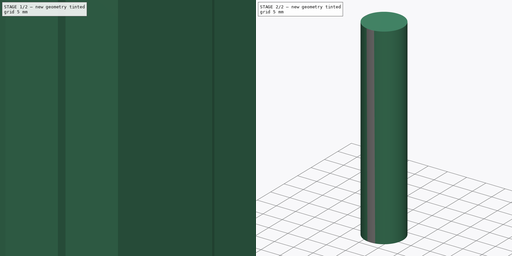
[diagram: build sequence overview — one tinted view per stage of 2, left to right]
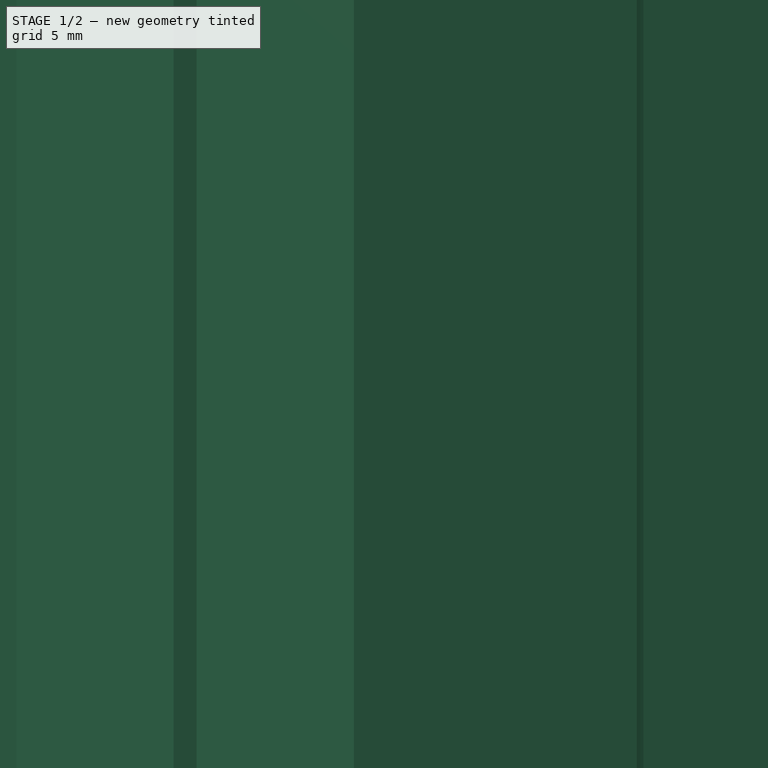
[diagram: stage 1 of 2 — iso view after this stage's code; geometry added in this stage tinted green]
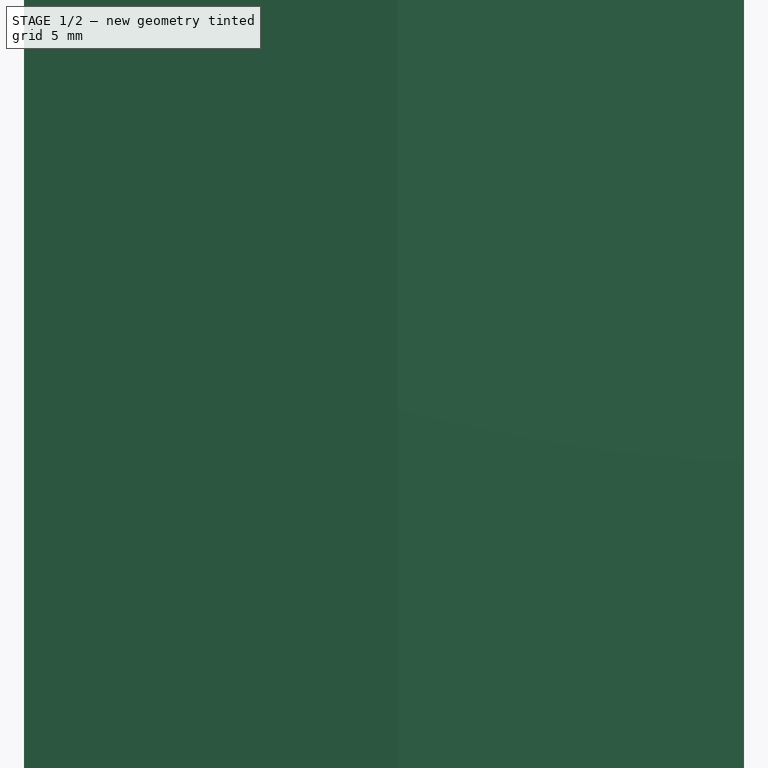
[diagram: stage 1 of 2 — front view after this stage's code; geometry added in this stage tinted green]
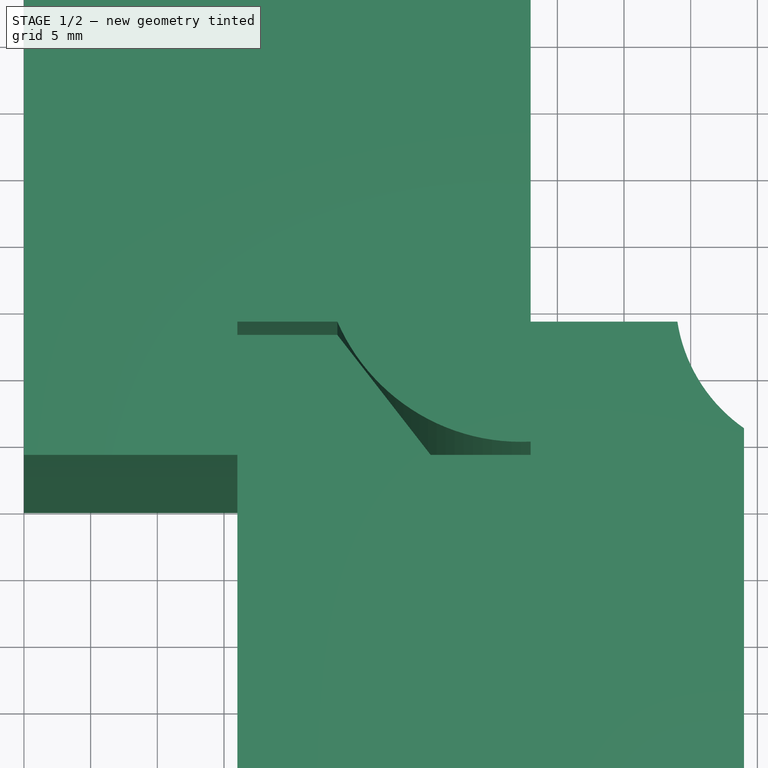
[diagram: stage 1 of 2 — top view after this stage's code; geometry added in this stage tinted green]
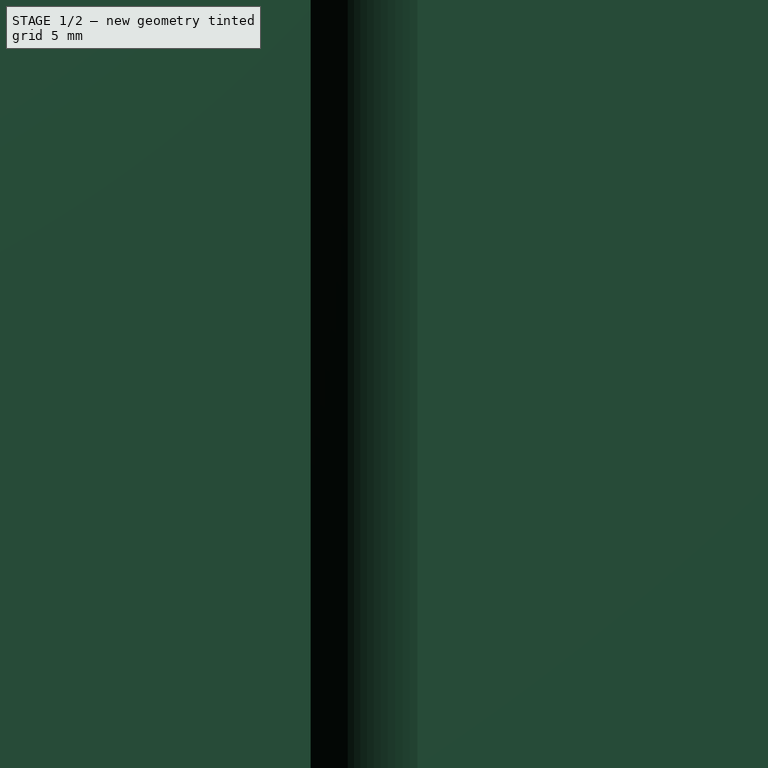
[diagram: stage 1 of 2 — right view after this stage's code; geometry added in this stage tinted green]
FCSTD DOCUMENT  (FreeCAD 0.19R24291 (Git))
Label: fenster_alt
License: All rights reserved
LicenseURL: http://en.wikipedia.org/wiki/All_rights_reserved
objects: TechDraw::DrawViewDimension×17, Sketcher::SketchObject×6, Part::Extrusion×3, App::DocumentObjectGroup×2, TechDraw::DrawSVGTemplate×1, TechDraw::DrawViewPart×1, TechDraw::DrawPage×1
note: 9 computed .brp shape members not serialized (recipe doc carries the construction recipe); baked Part::Feature solids carry a one-line shape summary decoded from their .brp

FEATURE [Sketcher::SketchObject] Sketch  label="blendrahmen_seite"
  FullyConstrained = true
  sketch-geometry (11):
    g0: LineSegment StartX=0 StartY=0 StartZ=0 EndX=0 EndY=57 EndZ=0
    g1: LineSegment StartX=0 StartY=57 StartZ=0 EndX=38 EndY=57 EndZ=0
    g2: LineSegment StartX=38 StartY=57 StartZ=0 EndX=38 EndY=1 EndZ=0
    g3: ArcOfCircle CenterX=37.8977 CenterY=25.9998 CenterZ=0 NormalX=0 NormalY=0 NormalZ=1 AngleXU=0 Radius=25 StartAngle=4.15658 EndAngle=4.71648
    g4: ArcOfCircle CenterX=16.7923 CenterY=-7.97906 CenterZ=0 NormalX=0 NormalY=0 NormalZ=1 AngleXU=0 Radius=15 StartAngle=1.01498 EndAngle=1.62364
    g5: LineSegment StartX=0 StartY=0 StartZ=0 EndX=16 EndY=0 EndZ=0
    g6: LineSegment StartX=16 StartY=0 StartZ=0 EndX=16 EndY=7 EndZ=0
    g7: GeomPoint X=16 Y=6.5 Z=0
    g8: LineSegment StartX=38 StartY=1 StartZ=0 EndX=38 EndY=0.5 EndZ=0
    g9: LineSegment StartX=16 StartY=6.5 StartZ=0 EndX=38 EndY=0.5 EndZ=0
    g10: GeomPoint X=27 Y=3.5 Z=0
  constraints (29):
    c: Coincident(g-1,g0)
    c: PointOnObject(g0,g-2)
    c: Coincident(g0,g1)
    c: Horizontal(g1)
    c: Coincident(g1,g2)
    c: Vertical(g2)
    c: Coincident(g3,g2)
    c: Coincident(g0,g5)
    c: PointOnObject(g5,g-1)
    c: Coincident(g5,g6)
    c: Coincident(g6,g4)
    c: Vertical(g6)
    c: DistanceY(g0,g0) = 57
    c: DistanceX(g1,g1) = 38
    c: DistanceY(g2,g2) = 56
    c: Radius(g4) = 15
    c: Radius(g3) = 25
    c: DistanceX(g5,g5) = 16
    c: DistanceY(g6,g6) = 7
    c: Tangent(g3,g4) = 1.5708
    c: PointOnObject(g7,g6)
    c: DistanceY(g7,g4) = 0.5
    c: Coincident(g8,g2)
    c: Vertical(g8)
    c: DistanceY(g8,g8) = 0.5
    c: Coincident(g9,g7)
    c: Coincident(g9,g8)
    c: Symmetric(g8,g7,g10)
    c: PointOnObject(g10,g3)
FEATURE [Sketcher::SketchObject] Sketch001  label="fluegelrahmen_seite"
  ExternalGeometry = -> [Sketch]
  FullyConstrained = true
  MapMode = 2
  Support = -> [Sketch]
  sketch-geometry (16):
    g0: LineSegment StartX=16 StartY=-38 StartZ=0 EndX=28 EndY=-38 EndZ=0
    g1: LineSegment StartX=28 StartY=-38 StartZ=0 EndX=28 EndY=-45 EndZ=0
    g2: LineSegment StartX=28 StartY=-45 StartZ=0 EndX=41 EndY=-43 EndZ=0
    g3: LineSegment StartX=41 StartY=-43 StartZ=0 EndX=41 EndY=-40 EndZ=0
    g4: LineSegment StartX=41 StartY=-40 StartZ=0 EndX=54 EndY=-38 EndZ=0
    g5: LineSegment StartX=54 StartY=-38 StartZ=0 EndX=54 EndY=-1 EndZ=0
    g6: ArcOfCircle CenterX=60.8568 CenterY=8.84803 CenterZ=0 NormalX=0 NormalY=0 NormalZ=1 AngleXU=0 Radius=12 StartAngle=3.29621 EndAngle=4.10417
    g7: LineSegment StartX=49 StartY=7 StartZ=0 EndX=38 EndY=7 EndZ=0
    g8: LineSegment StartX=38 StartY=7 StartZ=0 EndX=38 EndY=2.49e-14 EndZ=0
    g9: ArcOfCircle CenterX=37.2077 CenterY=14.9791 CenterZ=0 NormalX=0 NormalY=0 NormalZ=1 AngleXU=0 Radius=15 StartAngle=4.15658 EndAngle=4.76523
    g10: ArcOfCircle CenterX=16.1023 CenterY=-18.9998 CenterZ=0 NormalX=0 NormalY=0 NormalZ=1 AngleXU=0 Radius=25 StartAngle=1.01498 EndAngle=1.57489
    g11: LineSegment StartX=16 StartY=6 StartZ=0 EndX=16 EndY=-38 EndZ=0
    g12: LineSegment StartX=16 StartY=0 StartZ=0 EndX=38 EndY=2.49e-14 EndZ=0
    g13: LineSegment StartX=16 StartY=7 StartZ=0 EndX=16 EndY=6 EndZ=0
    g14: LineSegment StartX=38 StartY=0.5 StartZ=0 EndX=16 EndY=6.5 EndZ=0
    g15: GeomPoint X=27 Y=3.5 Z=0
  constraints (45):
    c: Horizontal(g0)
    c: Coincident(g0,g1)
    c: Vertical(g1)
    c: Coincident(g1,g2)
    c: Coincident(g2,g3)
    c: Vertical(g3)
    c: Coincident(g3,g4)
    c: Coincident(g4,g5)
    c: Vertical(g5)
    c: Coincident(g6,g5)
    c: Coincident(g6,g7)
    c: Coincident(g7,g8)
    c: Vertical(g8)
    c: Horizontal(g7)
    c: DistanceX(g0,g0) = 12
    c: DistanceY(g1,g2) = 2
    c: DistanceY(g2,g3) = 3
    c: DistanceY(g3,g4) = 2
    c: DistanceX(g0,g3) = 13
    c: DistanceX(g3,g4) = 13
    c: DistanceY(g4,g6) = 45
    c: DistanceY(g1,g1) = 7
    c: DistanceY(g0,g10) = 44
    c: Radius(g6) = 12
    c: DistanceY(g5,g6) = 8
    c: DistanceX(g6,g5) = 5
    c: Coincident(g11,g0)
    c: Vertical(g11)
    c: Radius(g9) = 15
    c: Radius(g10) = 25
    c: Coincident(g11,g10)
    c: PointOnObject(g10,g-4)
    c: DistanceY(g10,g-4) = 1
    c: Coincident(g9,g8)
    c: PointOnObject(g7,g-3)
    c: PointOnObject(g8,g-1)
    c: Coincident(g12,g-4)
    c: Coincident(g12,g8)
    c: Tangent(g10,g9) = 1.5708
    c: Coincident(g13,g-4)
    c: Coincident(g13,g10)
    c: Symmetric(g10,g13,g14)
    c: Symmetric(g8,g-3,g14)
    c: Symmetric(g14,g14,g15)
    c: PointOnObject(g15,g10)
FEATURE [TechDraw::DrawSVGTemplate] Template
  EditableTexts = AUTHOR_NAME=Malte Arzt; DATE=23.07.2022; DN=DN; REVISION=REV A; RIGHTS=(R) DO NOT DUPLICATE THIS DRAWING TO THIRD PARTIES WITHOUT OWNER'S PERMISSION !; SCALE=mm 1:1; SHEET=1 of 1; SIZE=A4; TITLELINE-1=Fenster Alt; TOLERANCE=+/- ?
  Height = 297
  Orientation = 0
  Width = 210
FEATURE [TechDraw::DrawViewPart] View
  CoarseView = false
  Direction = (0,0,1)
  Focus = 100
  HardHidden = false
  IsoCount = 0
  IsoHidden = false
  IsoVisible = false
  LockPosition = false
  Perspective = false
  Rotation = 0
  ScaleType = 0
  SeamHidden = false
  SeamVisible = true
  SmoothHidden = false
  SmoothVisible = true
  Source = -> [Sketch,Sketch001]
  X = 58.504
  XDirection = (1,0,0)
  Y = 223.263
FEATURE [TechDraw::DrawViewDimension] Dimension
  Arbitrary = false
  ArbitraryTolerances = false
  EqualTolerance = true
  FormatSpec = %.2f
  FormatSpecOverTolerance = %+.2f
  FormatSpecUnderTolerance = %+.2f
  Inverted = false
  LockPosition = false
  MeasureType = 1
  OverTolerance = 0
  References2D = -> [View]
  Rotation = 0
  ScaleType = 0
  TheoreticalExact = false
  Type = 1
  UnderTolerance = 0
  X = -9.55769
  Y = 59.8462
FEATURE [TechDraw::DrawViewDimension] Dimension001
  Arbitrary = false
  ArbitraryTolerances = false
  EqualTolerance = true
  FormatSpec = %.2f
  FormatSpecOverTolerance = %+.2f
  FormatSpecUnderTolerance = %+.2f
  Inverted = false
  LockPosition = false
  MeasureType = 1
  OverTolerance = 0
  References2D = -> [View]
  Rotation = 0
  ScaleType = 0
  TheoreticalExact = false
  Type = 2
  UnderTolerance = 0
  X = -34.1744
  Y = 27.6381
FEATURE [TechDraw::DrawViewDimension] Dimension002
  Arbitrary = false
  ArbitraryTolerances = false
  EqualTolerance = true
  FormatSpec = R%.2f
  FormatSpecOverTolerance = %+.2f
  FormatSpecUnderTolerance = %+.2f
  Inverted = false
  LockPosition = false
  MeasureType = 1
  OverTolerance = 0
  References2D = -> [View]
  Rotation = 0
  ScaleType = 0
  TheoreticalExact = false
  Type = 4
  UnderTolerance = 0
  X = -11.4576
  Y = -10.7196
FEATURE [TechDraw::DrawViewDimension] Dimension003
  Arbitrary = false
  ArbitraryTolerances = false
  EqualTolerance = true
  FormatSpec = R%.2f
  FormatSpecOverTolerance = %+.2f
  FormatSpecUnderTolerance = %+.2f
  Inverted = false
  LockPosition = false
  MeasureType = 1
  OverTolerance = 0
  References2D = -> [View]
  Rotation = 0
  ScaleType = 0
  TheoreticalExact = false
  Type = 4
  UnderTolerance = 0
  X = 4.714
  Y = 11.7529
FEATURE [TechDraw::DrawViewDimension] Dimension004
  Arbitrary = false
  ArbitraryTolerances = false
  EqualTolerance = true
  FormatSpec = %.2f
  FormatSpecOverTolerance = %+.2f
  FormatSpecUnderTolerance = %+.2f
  Inverted = false
  LockPosition = false
  MeasureType = 1
  OverTolerance = 0
  References2D = -> [View]
  Rotation = 0
  ScaleType = 0
  TheoreticalExact = false
  Type = 2
  UnderTolerance = 0
  X = 14.101
  Y = 27.1514
FEATURE [TechDraw::DrawViewDimension] Dimension005
  Arbitrary = false
  ArbitraryTolerances = false
  EqualTolerance = true
  FormatSpec = %.2f
  FormatSpecOverTolerance = %+.2f
  FormatSpecUnderTolerance = %+.2f
  Inverted = false
  LockPosition = false
  MeasureType = 1
  OverTolerance = 0
  References2D = -> [View]
  Rotation = 0
  ScaleType = 0
  TheoreticalExact = false
  Type = 2
  UnderTolerance = 0
  X = -18
  Y = -20.8105
FEATURE [TechDraw::DrawViewDimension] Dimension006
  Arbitrary = false
  ArbitraryTolerances = false
  EqualTolerance = true
  FormatSpec = %.2f
  FormatSpecOverTolerance = %+.2f
  FormatSpecUnderTolerance = %+.2f
  Inverted = false
  LockPosition = false
  MeasureType = 1
  OverTolerance = 0
  References2D = -> [View]
  Rotation = 0
  ScaleType = 0
  TheoreticalExact = false
  Type = 1
  UnderTolerance = 0
  X = -5.62361
  Y = -34
FEATURE [TechDraw::DrawViewDimension] Dimension007
  Arbitrary = false
  ArbitraryTolerances = false
  EqualTolerance = true
  FormatSpec = %.2f
  FormatSpecOverTolerance = %+.2f
  FormatSpecUnderTolerance = %+.2f
  Inverted = false
  LockPosition = false
  MeasureType = 1
  OverTolerance = 0
  References2D = -> [View]
  Rotation = 0
  ScaleType = 0
  TheoreticalExact = false
  Type = 2
  UnderTolerance = 0
  X = 31.012
  Y = -57
FEATURE [TechDraw::DrawViewDimension] Dimension008
  Arbitrary = false
  ArbitraryTolerances = false
  EqualTolerance = true
  FormatSpec = %.2f
  FormatSpecOverTolerance = %+.2f
  FormatSpecUnderTolerance = %+.2f
  Inverted = false
  LockPosition = false
  MeasureType = 1
  OverTolerance = 0
  References2D = -> [View]
  Rotation = 0
  ScaleType = 0
  TheoreticalExact = false
  Type = 2
  UnderTolerance = 0
  X = 33.2059
  Y = -25
FEATURE [TechDraw::DrawViewDimension] Dimension009
  Arbitrary = false
  ArbitraryTolerances = false
  EqualTolerance = true
  FormatSpec = %.2f
  FormatSpecOverTolerance = %+.2f
  FormatSpecUnderTolerance = %+.2f
  Inverted = false
  LockPosition = false
  MeasureType = 1
  OverTolerance = 0
  References2D = -> [View]
  Rotation = 0
  ScaleType = 0
  TheoreticalExact = false
  Type = 2
  UnderTolerance = 0
  X = -18
  Y = -45.7587
FEATURE [TechDraw::DrawViewDimension] Dimension010
  Arbitrary = false
  ArbitraryTolerances = false
  EqualTolerance = true
  FormatSpec = %.2f
  FormatSpecOverTolerance = %+.2f
  FormatSpecUnderTolerance = %+.2f
  Inverted = false
  LockPosition = false
  MeasureType = 1
  OverTolerance = 0
  References2D = -> [View]
  Rotation = 0
  ScaleType = 0
  TheoreticalExact = false
  Type = 1
  UnderTolerance = 0
  X = 16.8067
  Y = -5.24757
FEATURE [TechDraw::DrawViewDimension] Dimension011
  Arbitrary = false
  ArbitraryTolerances = false
  EqualTolerance = true
  FormatSpec = %.2f
  FormatSpecOverTolerance = %+.2f
  FormatSpecUnderTolerance = %+.2f
  Inverted = false
  LockPosition = false
  MeasureType = 1
  OverTolerance = 0
  References2D = -> [View]
  Rotation = 0
  ScaleType = 0
  TheoreticalExact = false
  Type = 1
  UnderTolerance = 0
  X = 7.69782
  Y = -34
FEATURE [TechDraw::DrawViewDimension] Dimension012
  Arbitrary = false
  ArbitraryTolerances = false
  EqualTolerance = true
  FormatSpec = %.2f
  FormatSpecOverTolerance = %+.2f
  FormatSpecUnderTolerance = %+.2f
  Inverted = false
  LockPosition = false
  MeasureType = 1
  OverTolerance = 0
  References2D = -> [View]
  Rotation = 0
  ScaleType = 0
  TheoreticalExact = false
  Type = 1
  UnderTolerance = 0
  X = 20.6319
  Y = -34
FEATURE [TechDraw::DrawViewDimension] Dimension013
  Arbitrary = false
  ArbitraryTolerances = false
  EqualTolerance = true
  FormatSpec = %.2f
  FormatSpecOverTolerance = %+.2f
  FormatSpecUnderTolerance = %+.2f
  Inverted = false
  LockPosition = false
  MeasureType = 1
  OverTolerance = 0
  References2D = -> [View]
  Rotation = 0
  ScaleType = 0
  TheoreticalExact = false
  Type = 1
  UnderTolerance = 0
  X = -19
  Y = 10.5395
FEATURE [TechDraw::DrawViewDimension] Dimension014
  Arbitrary = false
  ArbitraryTolerances = false
  EqualTolerance = true
  FormatSpec = R%.2f
  FormatSpecOverTolerance = %+.2f
  FormatSpecUnderTolerance = %+.2f
  Inverted = false
  LockPosition = false
  MeasureType = 1
  OverTolerance = 0
  References2D = -> [View]
  Rotation = 0
  ScaleType = 0
  TheoreticalExact = false
  Type = 4
  UnderTolerance = 0
  X = 32.4714
  Y = 9.00197
FEATURE [TechDraw::DrawViewDimension] Dimension015
  Arbitrary = false
  ArbitraryTolerances = false
  EqualTolerance = true
  FormatSpec = %.2f
  FormatSpecOverTolerance = %+.2f
  FormatSpecUnderTolerance = %+.2f
  Inverted = false
  LockPosition = false
  MeasureType = 1
  OverTolerance = 0
  References2D = -> [View]
  Rotation = 0
  ScaleType = 0
  TheoreticalExact = false
  Type = 2
  UnderTolerance = 0
  X = 38.6516
  Y = -57
FEATURE [TechDraw::DrawViewDimension] Dimension016
  Arbitrary = false
  ArbitraryTolerances = false
  EqualTolerance = true
  FormatSpec = %.2f
  FormatSpecOverTolerance = %+.2f
  FormatSpecUnderTolerance = %+.2f
  Inverted = false
  LockPosition = false
  MeasureType = 1
  OverTolerance = 0
  References2D = -> [View]
  Rotation = 0
  ScaleType = 0
  TheoreticalExact = false
  Type = 2
  UnderTolerance = 0
  X = 23.9064
  Y = -57
FEATURE [TechDraw::DrawPage] Page  label="TechDraw"
  KeepUpdated = true
  NextBalloonIndex = 1
  ProjectionType = 0
  Template = -> Template
  Views = -> [View,Dimension,Dimension001,Dimension002,Dimension003,Dimension004,Dimension005,Dimension006,Dimension007,Dimension008,Dimension009,Dimension010,Dimension011,Dimension012,Dimension013,Dimension014,Dimension015,Dimension016]
FEATURE [Sketcher::SketchObject] Sketch002  label="glass"
  ExternalGeometry = -> [Sketch001]
  FullyConstrained = true
  sketch-geometry (4):
    g0: LineSegment StartX=28 StartY=-38 StartZ=0 EndX=25 EndY=-38 EndZ=0
    g1: LineSegment StartX=25 StartY=-38 StartZ=0 EndX=25 EndY=-68 EndZ=0
    g2: LineSegment StartX=25 StartY=-68 StartZ=0 EndX=28 EndY=-68 EndZ=0
    g3: LineSegment StartX=28 StartY=-68 StartZ=0 EndX=28 EndY=-38 EndZ=0
  constraints (11):
    c: Coincident(g0,g1)
    c: Coincident(g1,g2)
    c: Coincident(g2,g3)
    c: Coincident(g3,g0)
    c: Horizontal(g0)
    c: Horizontal(g2)
    c: Vertical(g1)
    c: Vertical(g3)
    c: Coincident(g0,g-3)
    c: DistanceX(g0,g0) = 3
    c: DistanceY(g3,g3) = 30
FEATURE [App::DocumentObjectGroup] Group  label="fenster_s-falz"
  Group = -> [Sketch001,Sketch,Sketch002]
FEATURE [Sketcher::SketchObject] Sketch003  label="blendrahmen_seite001"
  FullyConstrained = true
  sketch-geometry (7):
    g0: LineSegment StartX=0 StartY=0 StartZ=0 EndX=0 EndY=57 EndZ=0
    g1: LineSegment StartX=0 StartY=57 StartZ=0 EndX=38 EndY=57 EndZ=0
    g2: LineSegment StartX=38 StartY=57 StartZ=0 EndX=38 EndY=1 EndZ=0
    g3: LineSegment StartX=0 StartY=0 StartZ=0 EndX=16 EndY=0 EndZ=0
    g4: LineSegment StartX=16 StartY=0 StartZ=0 EndX=16 EndY=10 EndZ=0
    g5: LineSegment StartX=16 StartY=10 StartZ=0 EndX=23.5 EndY=10 EndZ=0
    g6: ArcOfCircle CenterX=37.2558 CenterY=15.9815 CenterZ=0 NormalX=0 NormalY=0 NormalZ=1 AngleXU=0 Radius=15 StartAngle=3.55177 EndAngle=4.76202
  constraints (21):
    c: Coincident(g-1,g0)
    c: PointOnObject(g0,g-2)
    c: Coincident(g0,g1)
    c: Horizontal(g1)
    c: Coincident(g1,g2)
    c: Vertical(g2)
    c: Coincident(g0,g3)
    c: PointOnObject(g3,g-1)
    c: Coincident(g3,g4)
    c: Vertical(g4)
    c: DistanceY(g0,g0) = 57
    c: DistanceX(g1,g1) = 38
    c: DistanceY(g2,g2) = 56
    c: DistanceX(g3,g3) = 16
    c: DistanceY(g4,g4) = 10
    c: Coincident(g5,g4)
    c: Horizontal(g5)
    c: DistanceX(g5,g5) = 7.5
    c: Coincident(g6,g5)
    c: Coincident(g6,g2)
    c: Radius(g6) = 15
FEATURE [Sketcher::SketchObject] Sketch004  label="fluegelrahmen_seite001"
  ExternalGeometry = -> [Sketch003]
  FullyConstrained = true
  MapMode = 2
  Support = -> [Sketch003]
  sketch-geometry (13):
    g0: LineSegment StartX=16 StartY=-35 StartZ=0 EndX=28 EndY=-35 EndZ=0
    g1: LineSegment StartX=28 StartY=-35 StartZ=0 EndX=28 EndY=-42 EndZ=0
    g2: LineSegment StartX=28 StartY=-42 StartZ=0 EndX=41 EndY=-40 EndZ=0
    g3: LineSegment StartX=41 StartY=-40 StartZ=0 EndX=41 EndY=-37 EndZ=0
    g4: LineSegment StartX=41 StartY=-37 StartZ=0 EndX=54 EndY=-35 EndZ=0
    g5: LineSegment StartX=54 StartY=-35 StartZ=0 EndX=54 EndY=2 EndZ=0
    g6: ArcOfCircle CenterX=60.8568 CenterY=11.848 CenterZ=0 NormalX=0 NormalY=0 NormalZ=1 AngleXU=0 Radius=12 StartAngle=3.29621 EndAngle=4.10417
    g7: LineSegment StartX=49 StartY=10 StartZ=0 EndX=38 EndY=10 EndZ=0
    g8: LineSegment StartX=38 StartY=10 StartZ=0 EndX=38 EndY=0 EndZ=0
    g9: LineSegment StartX=16 StartY=9 StartZ=0 EndX=16 EndY=-35 EndZ=0
    g10: LineSegment StartX=38 StartY=0 StartZ=0 EndX=30.5 EndY=0 EndZ=0
    g11: LineSegment StartX=16 StartY=9 StartZ=0 EndX=23.5 EndY=9 EndZ=0
    g12: LineSegment StartX=23.5 StartY=9 StartZ=0 EndX=30.5 EndY=0 EndZ=0
  constraints (40):
    c: Horizontal(g0)
    c: Coincident(g0,g1)
    c: Vertical(g1)
    c: Coincident(g1,g2)
    c: Coincident(g2,g3)
    c: Vertical(g3)
    c: Coincident(g3,g4)
    c: Coincident(g4,g5)
    c: Vertical(g5)
    c: Coincident(g6,g5)
    c: Coincident(g6,g7)
    c: Coincident(g7,g8)
    c: Vertical(g8)
    c: Horizontal(g7)
    c: DistanceX(g0,g0) = 12
    c: DistanceY(g1,g2) = 2
    c: DistanceY(g2,g3) = 3
    c: DistanceY(g3,g4) = 2
    c: DistanceX(g0,g3) = 13
    c: DistanceX(g3,g4) = 13
    c: DistanceY(g4,g6) = 45
    c: DistanceY(g1,g1) = 7
    c: DistanceY(g0,g9) = 44
    c: Radius(g6) = 12
    c: DistanceY(g5,g6) = 8
    c: DistanceX(g6,g5) = 5
    c: Coincident(g9,g0)
    c: Vertical(g9)
    c: PointOnObject(g7,g-3)
    c: PointOnObject(g8,g-1)
    c: Coincident(g10,g8)
    c: PointOnObject(g10,g-1)
    c: Coincident(g11,g9)
    c: Horizontal(g11)
    c: Coincident(g12,g11)
    c: Coincident(g12,g10)
    c: Equal(g11,g10)
    c: DistanceX(g11,g11) = 7.5
    c: PointOnObject(g9,g-5)
    c: DistanceY(g9,g-5) = 1
FEATURE [Part::Extrusion] Extrude
  Base = -> Sketch003
  Dir = (0,0,1)
  DirMode = 2
  FaceMakerClass = Part::FaceMakerBullseye
  LengthFwd = 250
  LengthRev = 0
  Solid = true
  Symmetric = false
FEATURE [Part::Extrusion] Extrude001
  Base = -> Sketch004
  Dir = (0,0,1)
  DirMode = 2
  FaceMakerClass = Part::FaceMakerBullseye
  LengthFwd = 250
  LengthRev = 0
  Solid = true
  Symmetric = false
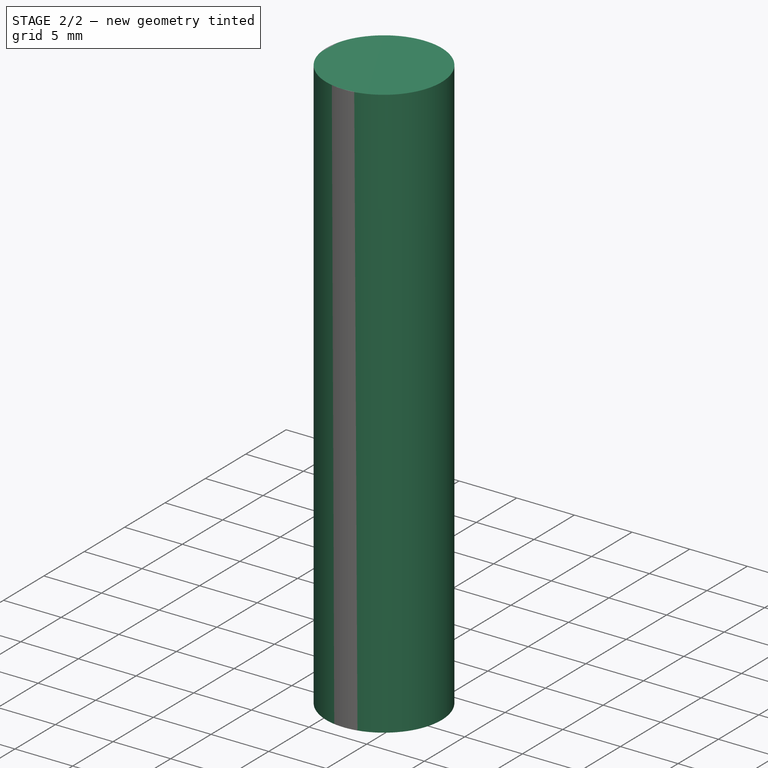
[diagram: stage 2 of 2 — iso view after this stage's code; geometry added in this stage tinted green]
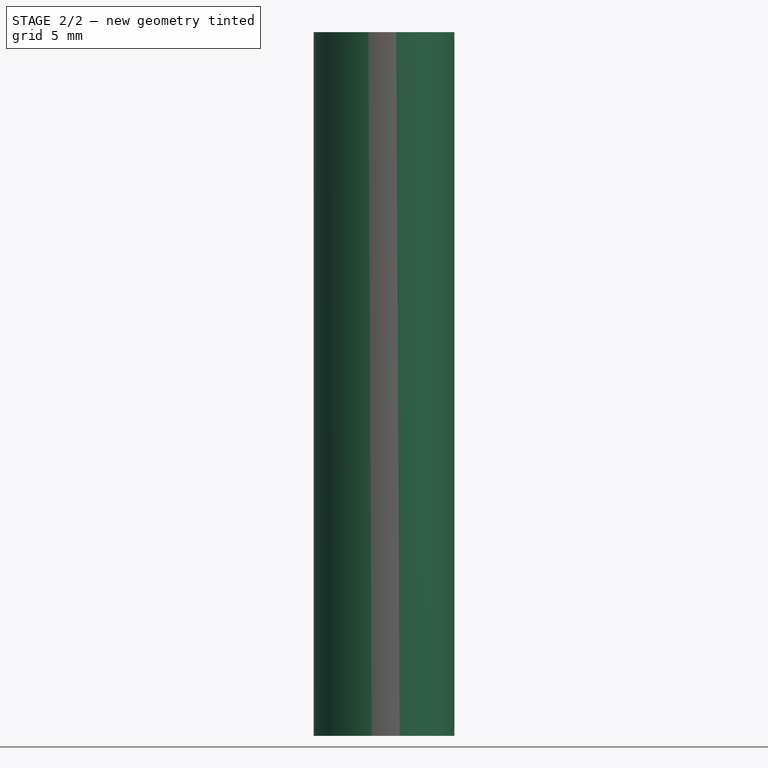
[diagram: stage 2 of 2 — front view after this stage's code; geometry added in this stage tinted green]
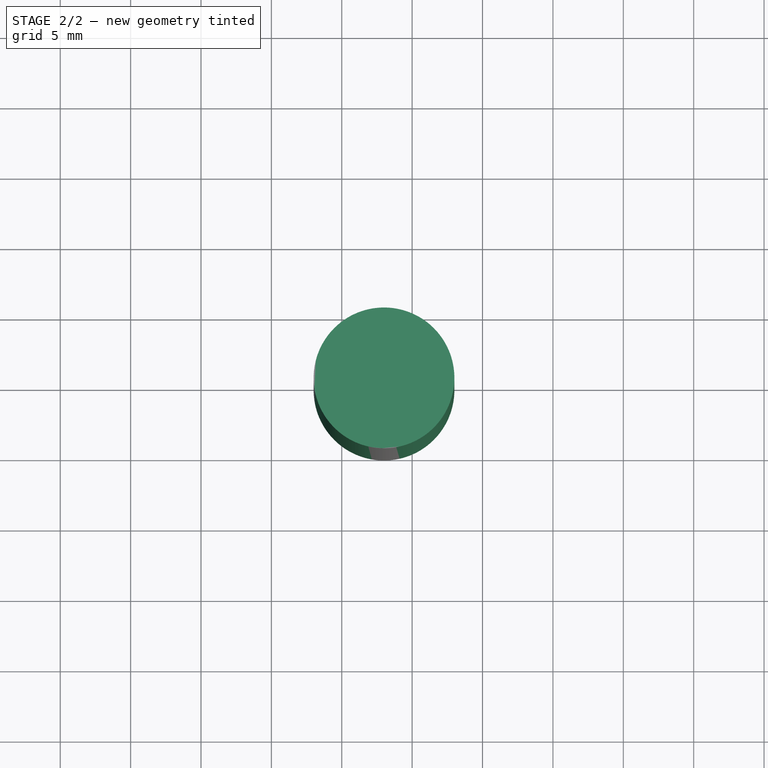
[diagram: stage 2 of 2 — top view after this stage's code; geometry added in this stage tinted green]
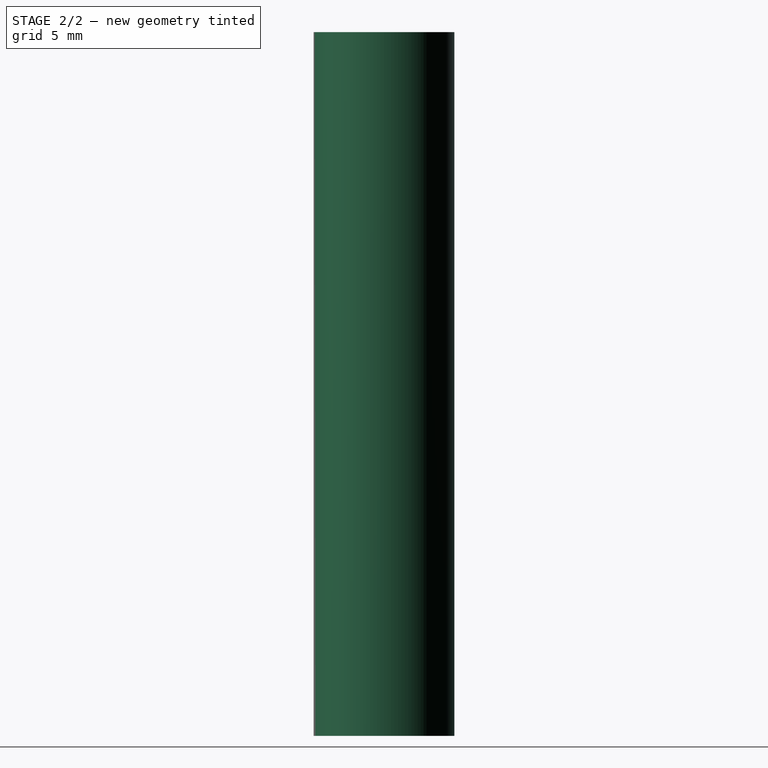
[diagram: stage 2 of 2 — right view after this stage's code; geometry added in this stage tinted green]
FEATURE [Sketcher::SketchObject] Sketch005
  ExternalGeometry = -> [Extrude,Extrude001]
  FullyConstrained = true
  MapMode = 2
  Support = -> [Sketch004]
  sketch-geometry (1):
    g0: Circle CenterX=43 CenterY=15 CenterZ=0 NormalX=0 NormalY=0 NormalZ=1 AngleXU=0 Radius=5
  constraints (3):
    c: Tangent(g0,g-3)
    c: Tangent(g-4,g0)
    c: Radius(g0) = 5
FEATURE [App::DocumentObjectGroup] Group001  label="fenster_hinternute"
  Group = -> [Sketch003,Sketch004,Sketch005]
FEATURE [Part::Extrusion] Extrude002
  Base = -> Sketch005
  Dir = (0,0,1)
  DirMode = 2
  FaceMakerClass = Part::FaceMakerBullseye
  LengthFwd = 50
  LengthRev = 0
  Solid = true
  Symmetric = false
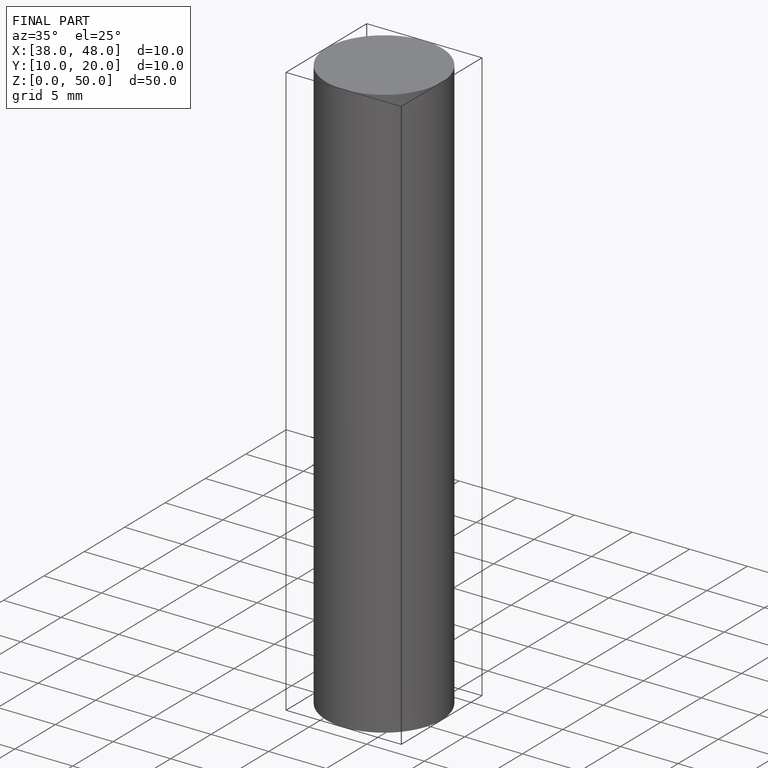
[diagram: finished part — iso view with bounding-box wireframe]
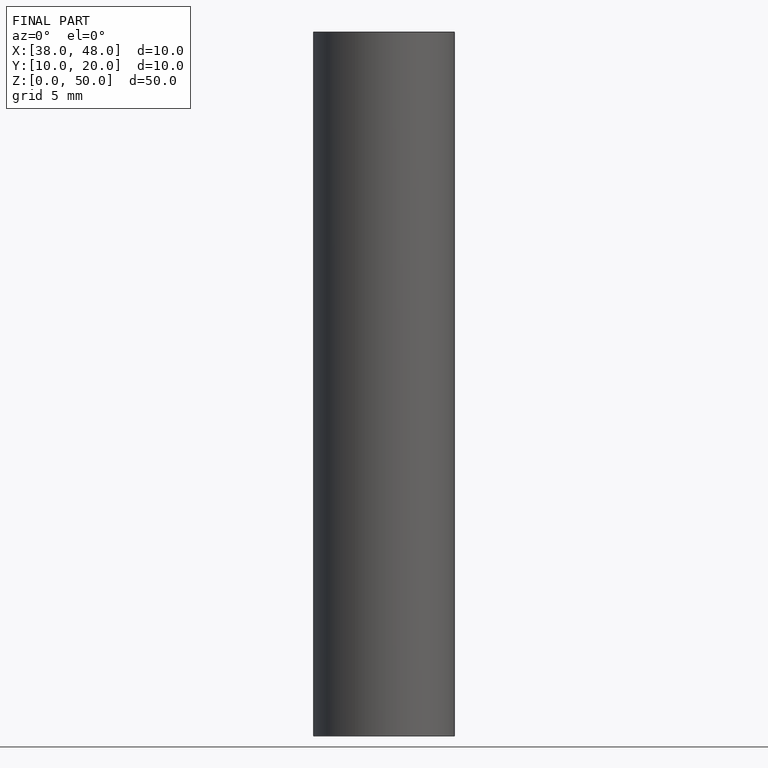
[diagram: finished part — front view with bounding-box wireframe]
